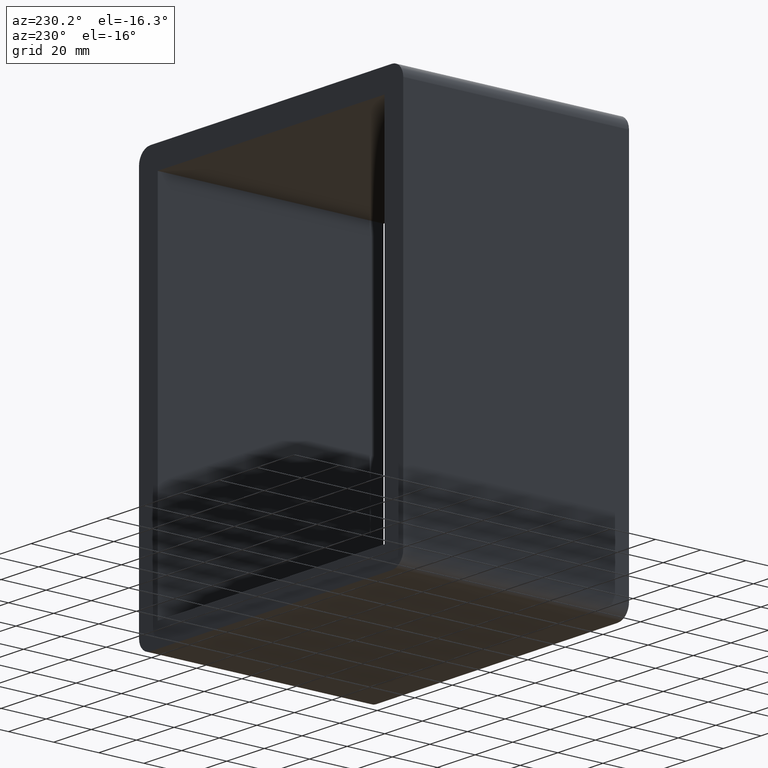
[diagram: clean part render]
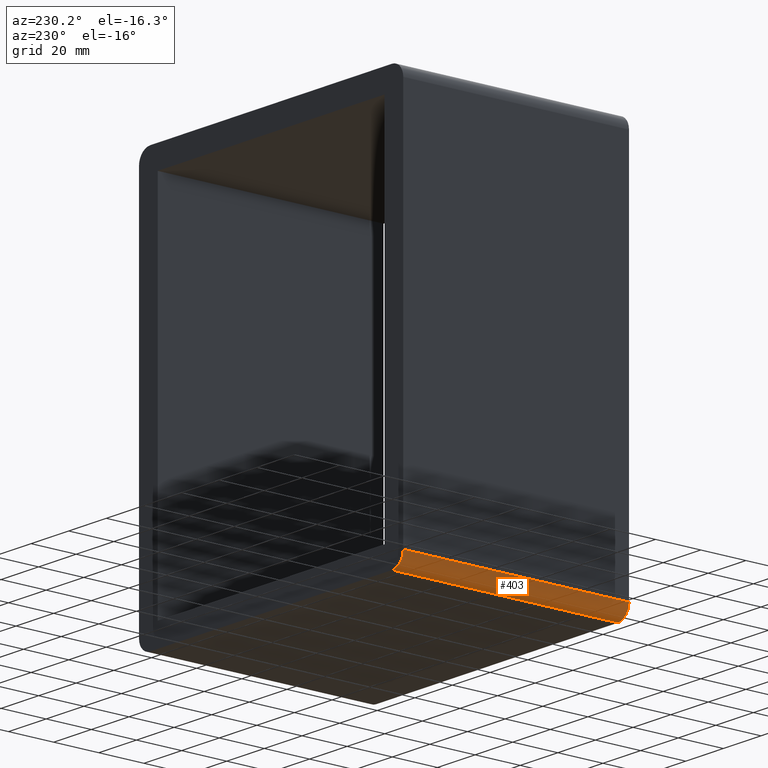
[diagram: same view with one face highlighted and labeled with its STEP entity id]
A machine part, auxiliary view. The second image highlights one B-rep face of the part: STEP entity #403.
In plain terms, the highlighted cylindrical surface (edge-blend (fillet) strip) has radius 6 mm, axis along (0, 1, 0).
Its self-contained STEP definition (entity closure, byte-faithful):
#233=CARTESIAN_POINT('',(-70.25,-3.0,-83.750000000000028));
#234=VERTEX_POINT('',#233);
#241=CARTESIAN_POINT('',(-64.25,-3.0,-89.750000000000014));
#242=VERTEX_POINT('',#241);
#243=CARTESIAN_POINT('',(-64.25,-3.0,-83.750000000000028));
#244=DIRECTION('',(0.0,-1.0,0.0));
#245=DIRECTION('',(0.0,0.0,-1.0));
#246=AXIS2_PLACEMENT_3D('',#243,#244,#245);
#247=CIRCLE('',#246,6.000000000000001);
#248=EDGE_CURVE('',#234,#242,#247,.T.);
#361=CARTESIAN_POINT('',(-70.25,97.0,-83.750000000000028));
#362=VERTEX_POINT('',#361);
#369=CARTESIAN_POINT('',(-70.25,-3.0,-83.750000000000028));
#370=DIRECTION('',(0.0,1.0,0.0));
#371=VECTOR('',#370,100.0);
#372=LINE('',#369,#371);
#373=EDGE_CURVE('',#234,#362,#372,.T.);
#379=CARTESIAN_POINT('',(-64.25,0.0,-83.750000000000028));
#380=DIRECTION('',(0.0,1.0,0.0));
#381=DIRECTION('',(0.0,0.0,-1.0));
#382=AXIS2_PLACEMENT_3D('',#379,#380,#381);
#383=CYLINDRICAL_SURFACE('',#382,6.000000000000001);
#384=ORIENTED_EDGE('',*,*,#373,.T.);
#385=CARTESIAN_POINT('',(-64.25,97.0,-89.750000000000014));
#386=VERTEX_POINT('',#385);
#387=CARTESIAN_POINT('',(-64.25,97.0,-83.750000000000028));
#388=DIRECTION('',(0.0,1.0,0.0));
#389=DIRECTION('',(0.0,0.0,-1.0));
#390=AXIS2_PLACEMENT_3D('',#387,#388,#389);
#391=CIRCLE('',#390,6.000000000000001);
#392=EDGE_CURVE('',#386,#362,#391,.T.);
#393=ORIENTED_EDGE('',*,*,#392,.F.);
#394=CARTESIAN_POINT('',(-64.25,-3.0,-89.750000000000014));
#395=DIRECTION('',(0.0,1.0,0.0));
#396=VECTOR('',#395,100.0);
#397=LINE('',#394,#396);
#398=EDGE_CURVE('',#242,#386,#397,.T.);
#399=ORIENTED_EDGE('',*,*,#398,.F.);
#400=ORIENTED_EDGE('',*,*,#248,.F.);
#401=EDGE_LOOP('',(#384,#393,#399,#400));
#402=FACE_OUTER_BOUND('',#401,.T.);
#403=ADVANCED_FACE('',(#402),#383,.T.);